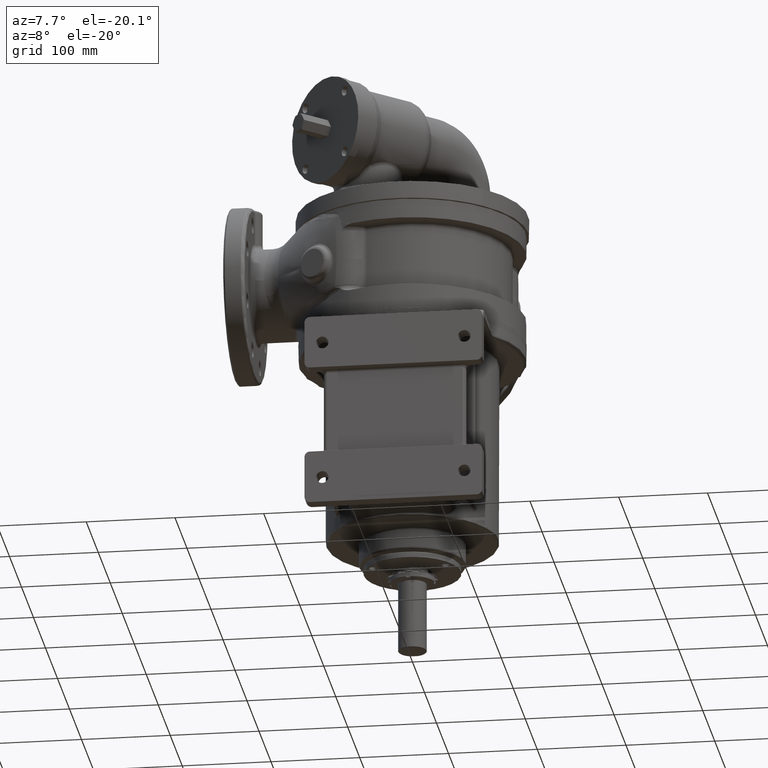
[diagram: clean part render]
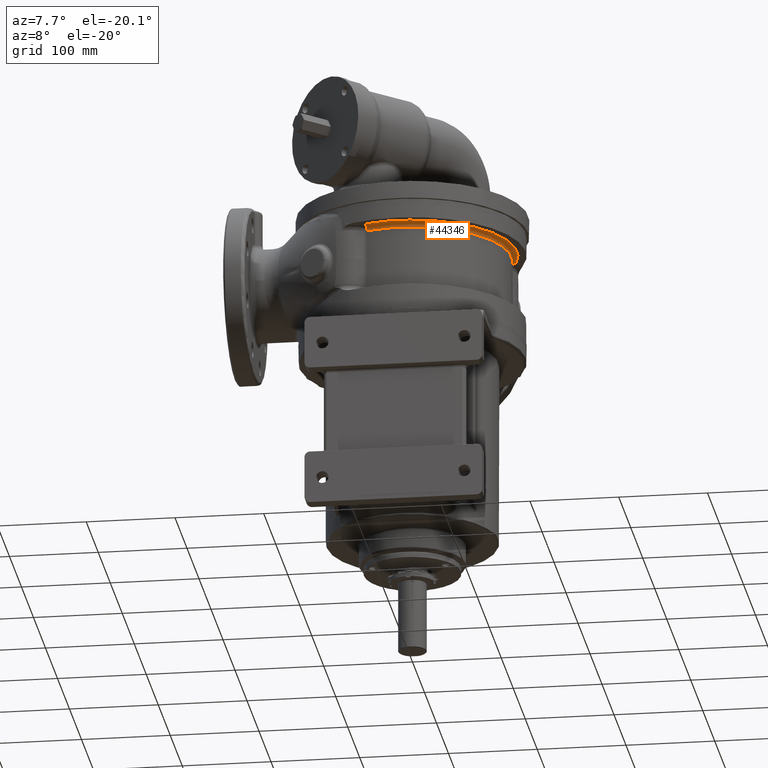
[diagram: same view with one face highlighted and labeled with its STEP entity id]
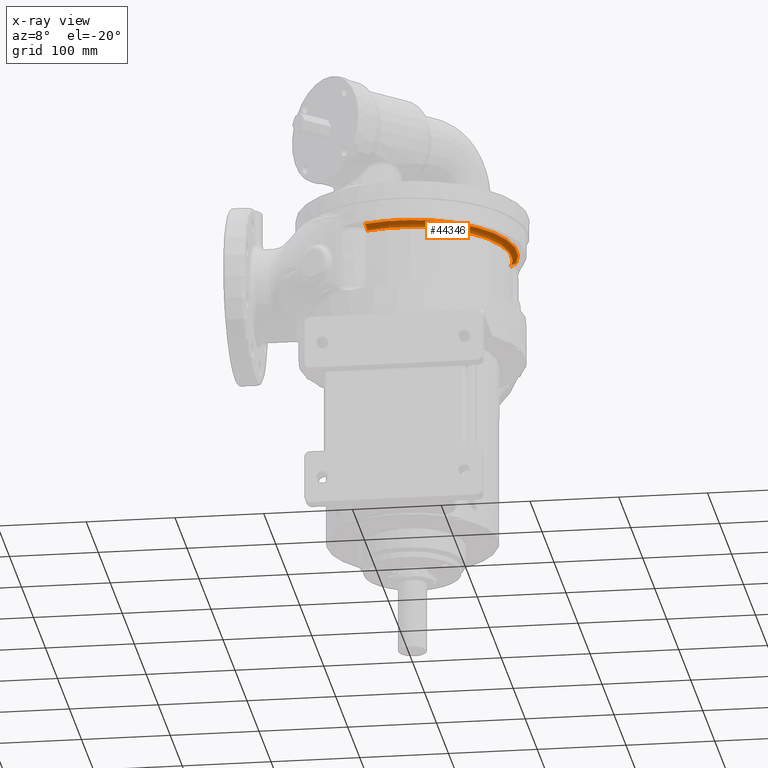
[diagram: x-ray of the same camera — body ghosted, the highlighted face saturated]
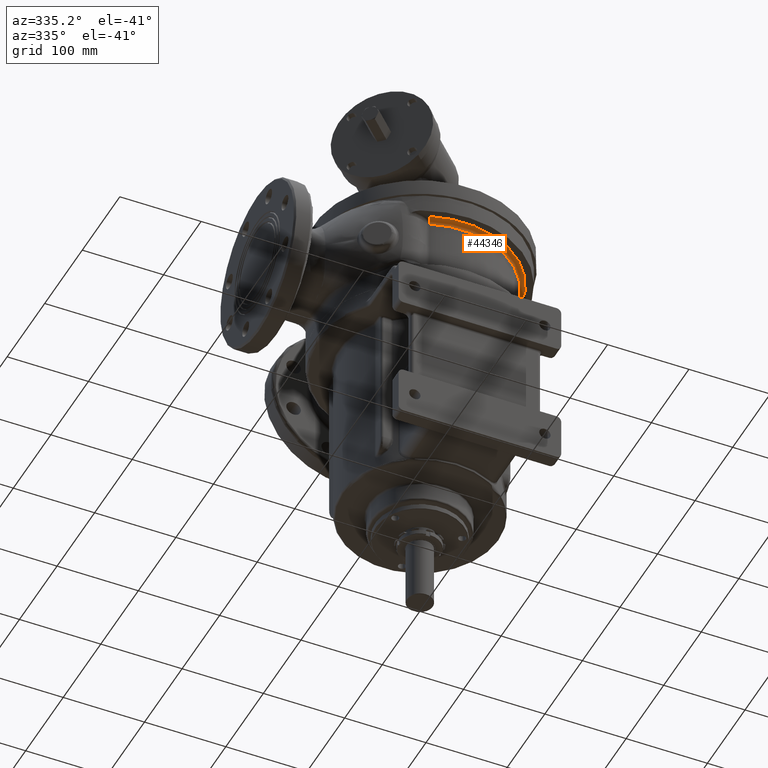
[diagram: same view with one face highlighted and labeled with its STEP entity id]
A machine part, auxiliary view. The second image highlights one B-rep face of the part: STEP entity #44346.
The next image is the same camera in x-ray: the body ghosted, the highlighted face saturated — about 0% of this face is hidden behind the body in this view.
A second angle (auxiliary view) of the same face is appended — the face is thin or edge-on in the first view.
In plain terms, the highlighted toroidal blend (fillet) surface has major radius 118 mm and minor (blend) radius 6 mm.
Its self-contained STEP definition (entity closure, byte-faithful):
#8608=CARTESIAN_POINT('',(1.113986855898E2,3.891439876292E1,1.154999999344E2));
#8610=CARTESIAN_POINT('',(-3.891440501342E1,-1.113986861713E2,
1.154999999689E2));
#8629=CARTESIAN_POINT('',(2.402068032334E-13,-1.327806089674E-13,1.155E2));
#8630=DIRECTION('',(0.E0,0.E0,1.E0));
#8631=DIRECTION('',(-3.297831540264E-1,-9.440567098011E-1,0.E0));
#8632=AXIS2_PLACEMENT_3D('',#8629,#8630,#8631);
#8634=CARTESIAN_POINT('',(2.271485395805E-13,-1.276625873796E-13,1.095E2));
#8635=DIRECTION('',(0.E0,0.E0,-1.E0));
#8636=DIRECTION('',(9.440568084017E-1,3.297828717661E-1,0.E0));
#8637=AXIS2_PLACEMENT_3D('',#8634,#8635,#8636);
#8644=CARTESIAN_POINT('',(1.113986939529E2,3.891440588764E1,1.095E2));
#8645=DIRECTION('',(3.297831007428E-1,-9.440567284144E-1,0.E0));
#8646=DIRECTION('',(4.649317967657E-12,1.622405913319E-12,1.E0));
#8647=AXIS2_PLACEMENT_3D('',#8644,#8645,#8646);
#8697=CARTESIAN_POINT('',(1.057343558257E2,3.693570085663E1,1.095000000006E2));
#8779=CARTESIAN_POINT('',(-3.693570973351E1,-1.057343527264E2,1.095E2));
#12052=CARTESIAN_POINT('',(-3.891440588765E1,-1.113986939529E2,1.095E2));
#12053=DIRECTION('',(9.440567284144E-1,-3.297831007428E-1,0.E0));
#12054=DIRECTION('',(3.297831007428E-1,9.440567284144E-1,0.E0));
#12055=AXIS2_PLACEMENT_3D('',#12052,#12053,#12054);
#19980=VERTEX_POINT('',#8608);
#20025=VERTEX_POINT('',#8610);
#20029=VERTEX_POINT('',#8697);
#20035=VERTEX_POINT('',#8779);
#44332=CARTESIAN_POINT('',(2.271485395805E-13,-1.276625873796E-13,1.095E2));
#44333=DIRECTION('',(0.E0,0.E0,-1.E0));
#44334=DIRECTION('',(9.194592229908E-1,3.931853726389E-1,0.E0));
#44335=AXIS2_PLACEMENT_3D('',#44332,#44333,#44334);
#44336=TOROIDAL_SURFACE('',#44335,1.18E2,6.E0);
#44337=ORIENTED_EDGE('',*,*,#44324,.T.);
#44339=ORIENTED_EDGE('',*,*,#44338,.T.);
#44341=ORIENTED_EDGE('',*,*,#44340,.T.);
#44343=ORIENTED_EDGE('',*,*,#44342,.T.);
#44344=EDGE_LOOP('',(#44337,#44339,#44341,#44343));
#44345=FACE_OUTER_BOUND('',#44344,.F.);
#44346=ADVANCED_FACE('',(#44345),#44336,.F.);
#8633=CIRCLE('',#8632,1.18E2);
#8638=CIRCLE('',#8637,1.12E2);
#8648=CIRCLE('',#8647,6.E0);
#12056=CIRCLE('',#12055,6.E0);
#44324=EDGE_CURVE('',#20025,#19980,#8633,.T.);
#44338=EDGE_CURVE('',#19980,#20029,#8648,.T.);
#44340=EDGE_CURVE('',#20029,#20035,#8638,.T.);
#44342=EDGE_CURVE('',#20035,#20025,#12056,.T.);